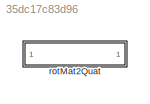
MODEL slx_35dc17c83d96
KIND library
CONFIG AbsTol = auto
CONFIG EnableMultiTasking = off
CONFIG FixedStep = auto
CONFIG MaxStep = auto
CONFIG MinStep = auto
CONFIG RelTol = 1e-3
CONFIG SampleTimeConstraint = Unconstrained
CONFIG SolverName = VariableStepAuto
CONFIG StartTime = 0.0
CONFIG StopTime = 10.0
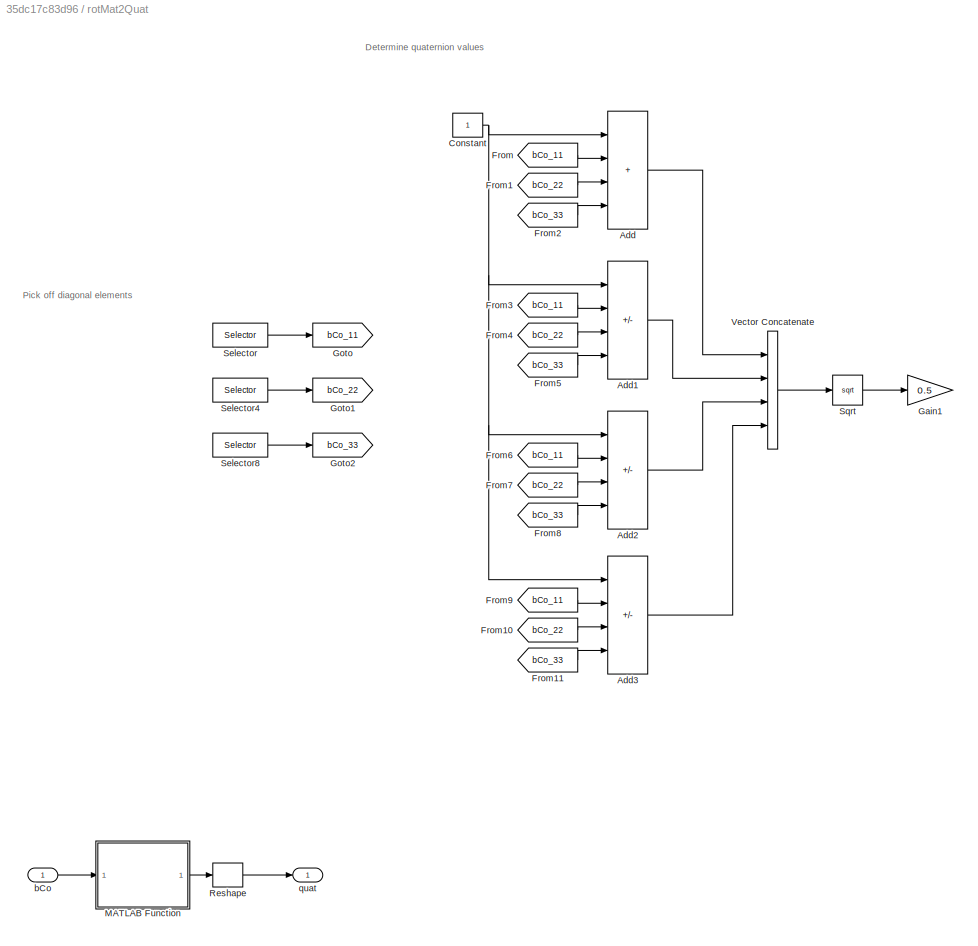
BLOCK [SubSystem] rotMat2Quat
  Ports = [1, 1]
  RequestExecContextInheritance = off
BLOCK [Sum] rotMat2Quat/Add
  Commented = on
  IconShape = rectangular
  Inputs = ++++
  Ports = [4, 1]
BLOCK [Sum] rotMat2Quat/Add1
  Commented = on
  IconShape = rectangular
  Inputs = ++--
  Ports = [4, 1]
BLOCK [Sum] rotMat2Quat/Add2
  Commented = on
  IconShape = rectangular
  Inputs = +-+-
  Ports = [4, 1]
BLOCK [Sum] rotMat2Quat/Add3
  Commented = on
  IconShape = rectangular
  Inputs = +--+
  Ports = [4, 1]
BLOCK [Constant] rotMat2Quat/Constant
  Commented = on
BLOCK [From] rotMat2Quat/From
  Commented = on
  GotoTag = bCo_11
BLOCK [From] rotMat2Quat/From1
  Commented = on
  GotoTag = bCo_22
BLOCK [From] rotMat2Quat/From10
  Commented = on
  GotoTag = bCo_22
BLOCK [From] rotMat2Quat/From11
  Commented = on
  GotoTag = bCo_33
BLOCK [From] rotMat2Quat/From2
  Commented = on
  GotoTag = bCo_33
BLOCK [From] rotMat2Quat/From3
  Commented = on
  GotoTag = bCo_11
BLOCK [From] rotMat2Quat/From4
  Commented = on
  GotoTag = bCo_22
BLOCK [From] rotMat2Quat/From5
  Commented = on
  GotoTag = bCo_33
BLOCK [From] rotMat2Quat/From6
  Commented = on
  GotoTag = bCo_11
BLOCK [From] rotMat2Quat/From7
  Commented = on
  GotoTag = bCo_22
BLOCK [From] rotMat2Quat/From8
  Commented = on
  GotoTag = bCo_33
BLOCK [From] rotMat2Quat/From9
  Commented = on
  GotoTag = bCo_11
BLOCK [Gain] rotMat2Quat/Gain1
  Commented = on
  Gain = 0.5
BLOCK [Goto] rotMat2Quat/Goto
  Commented = on
  GotoTag = bCo_11
BLOCK [Goto] rotMat2Quat/Goto1
  Commented = on
  GotoTag = bCo_22
BLOCK [Goto] rotMat2Quat/Goto2
  Commented = on
  GotoTag = bCo_33
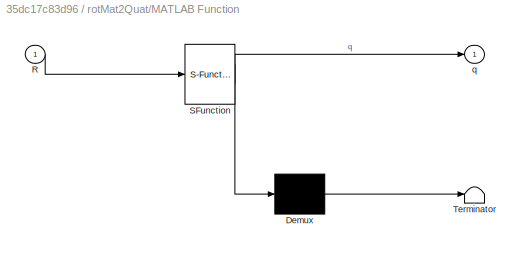
BLOCK [SubSystem] rotMat2Quat/MATLAB Function
  ErrorFcn = Stateflow.Translate.translate
  PermitHierarchicalResolution = ExplicitOnly
  Ports = [1, 1]
  RequestExecContextInheritance = off
  SFBlockType = MATLAB Function
  TreatAsAtomicUnit = on
BLOCK [Demux] rotMat2Quat/MATLAB Function/ Demux 
  Outputs = 1
  Ports = [1, 1]
BLOCK [S-Function] rotMat2Quat/MATLAB Function/ SFunction 
  EnableBusSupport = off
  FunctionName = sf_sfun
  PortCounts = [1 2]
  Ports = [1, 2]
  SFcnIsStateOwnerBlock = off
  SFunctionDeploymentMode = off
  Tag = Stateflow S-Function 1
BLOCK [Terminator] rotMat2Quat/MATLAB Function/ Terminator 
BLOCK [Inport] rotMat2Quat/MATLAB Function/R
BLOCK [Outport] rotMat2Quat/MATLAB Function/q
  VectorParamsAs1DForOutWhenUnconnected = off
BLOCK [Reshape] rotMat2Quat/Reshape
  OutputDimensionality = Column vector (2-D)
  Ports = [1, 1]
BLOCK [Selector] rotMat2Quat/Selector
  Commented = on
  IndexOptions = Index vector (dialog),Index vector (dialog)
  Indices = 1,1
  InputPortWidth = 3
  NumberOfDimensions = 2
  OutputSizes = 1,1
  Ports = [1, 1]
BLOCK [Selector] rotMat2Quat/Selector4
  Commented = on
  IndexOptions = Index vector (dialog),Index vector (dialog)
  Indices = 2,2
  InputPortWidth = 3
  NumberOfDimensions = 2
  OutputSizes = 1,1
  Ports = [1, 1]
BLOCK [Selector] rotMat2Quat/Selector8
  Commented = on
  IndexOptions = Index vector (dialog),Index vector (dialog)
  Indices = 3,3
  InputPortWidth = 3
  NumberOfDimensions = 2
  OutputSizes = 1,1
  Ports = [1, 1]
BLOCK [Sqrt] rotMat2Quat/Sqrt
  Commented = on
BLOCK [Concatenate] rotMat2Quat/Vector Concatenate
  Commented = on
  NumInputs = 4
  Ports = [4, 1]
BLOCK [Inport] rotMat2Quat/bCo
BLOCK [Outport] rotMat2Quat/quat
  PortDimensions = [4,1]
  VectorParamsAs1DForOutWhenUnconnected = off
ANNOTATION rotMat2Quat: Determine quaternion values
ANNOTATION rotMat2Quat: Pick off diagonal elements
LINE rotMat2Quat/Add1:1 -> rotMat2Quat/Vector Concatenate:2
LINE rotMat2Quat/Add2:1 -> rotMat2Quat/Vector Concatenate:3
LINE rotMat2Quat/Add3:1 -> rotMat2Quat/Vector Concatenate:4
LINE rotMat2Quat/Add:1 -> rotMat2Quat/Vector Concatenate:1
NET rotMat2Quat/Constant:1 -> rotMat2Quat/Add1:1, rotMat2Quat/Add2:1, rotMat2Quat/Add3:1, rotMat2Quat/Add:1
LINE rotMat2Quat/From10:1 -> rotMat2Quat/Add3:3
LINE rotMat2Quat/From11:1 -> rotMat2Quat/Add3:4
LINE rotMat2Quat/From1:1 -> rotMat2Quat/Add:3
LINE rotMat2Quat/From2:1 -> rotMat2Quat/Add:4
LINE rotMat2Quat/From3:1 -> rotMat2Quat/Add1:2
LINE rotMat2Quat/From4:1 -> rotMat2Quat/Add1:3
LINE rotMat2Quat/From5:1 -> rotMat2Quat/Add1:4
LINE rotMat2Quat/From6:1 -> rotMat2Quat/Add2:2
LINE rotMat2Quat/From7:1 -> rotMat2Quat/Add2:3
LINE rotMat2Quat/From8:1 -> rotMat2Quat/Add2:4
LINE rotMat2Quat/From9:1 -> rotMat2Quat/Add3:2
LINE rotMat2Quat/From:1 -> rotMat2Quat/Add:2
LINE rotMat2Quat/MATLAB Function:1 -> rotMat2Quat/Reshape:1
LINE rotMat2Quat/Reshape:1 -> rotMat2Quat/quat:1
LINE rotMat2Quat/Selector4:1 -> rotMat2Quat/Goto1:1
LINE rotMat2Quat/Selector8:1 -> rotMat2Quat/Goto2:1
LINE rotMat2Quat/Selector:1 -> rotMat2Quat/Goto:1
LINE rotMat2Quat/Sqrt:1 -> rotMat2Quat/Gain1:1
LINE rotMat2Quat/Vector Concatenate:1 -> rotMat2Quat/Sqrt:1
LINE rotMat2Quat/bCo:1 -> rotMat2Quat/MATLAB Function:1
note: NET lines group one-source signal fan-out (src -> all destinations, sorted); 1:1 wires keep LINE
CHART rotMat2Quat/MATLAB Function states=1 transitions=1
  STATE_LABEL 'eML_blk_kernel()'
  STATE_LABEL 'SCRIPT:\nfunction q = eulAng2Quat(R)\nq = zeros(4,1);\n\n% Extracting elements\nR11 = R(1,1);\nR12 = R(1,2);\nR13 = R(1,3);\nR21 = R(2,1);\nR22 = R(2,2);\nR23 = R(2,3);\nR31 = R(3,1);\nR32 = R(3,2);\nR33 = R(3,3);\n\n% Calculating squares elements\nq0 = (1 + R11 + R22 + R33)/4;\nq1 = (1 + R11 - R22 - R33)/4;\nq2 = (1 - R11 + R22 - R33)/4;\nq3 = (1 - R11 - R22 + R33)/4;\n\n% qMag = sqrt(sum([q0 q1 q2 q3].^2));\n% q0 = q...<+1418ch>'
CHART  states=0 transitions=0
